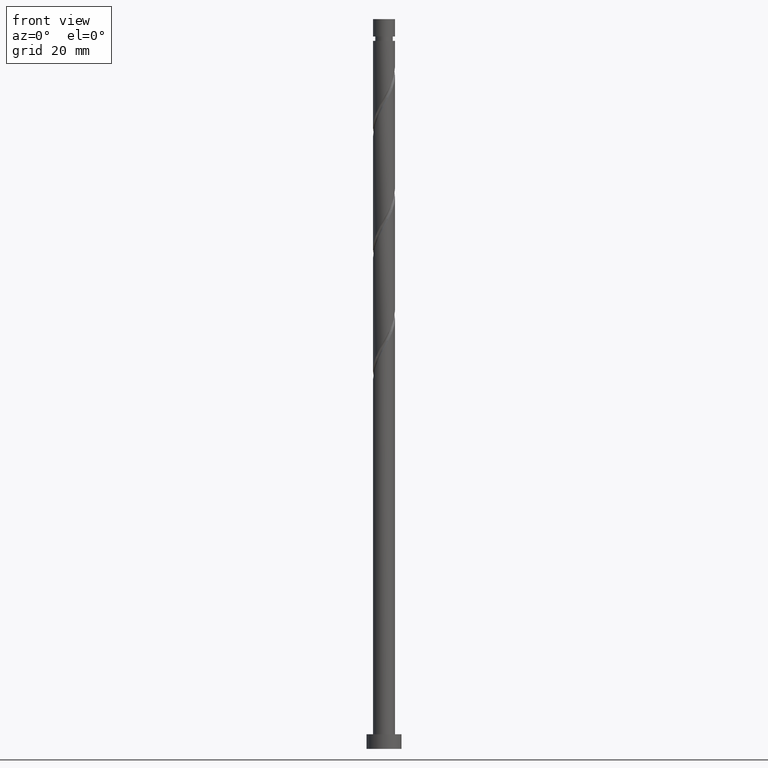
[diagram: clean part render]
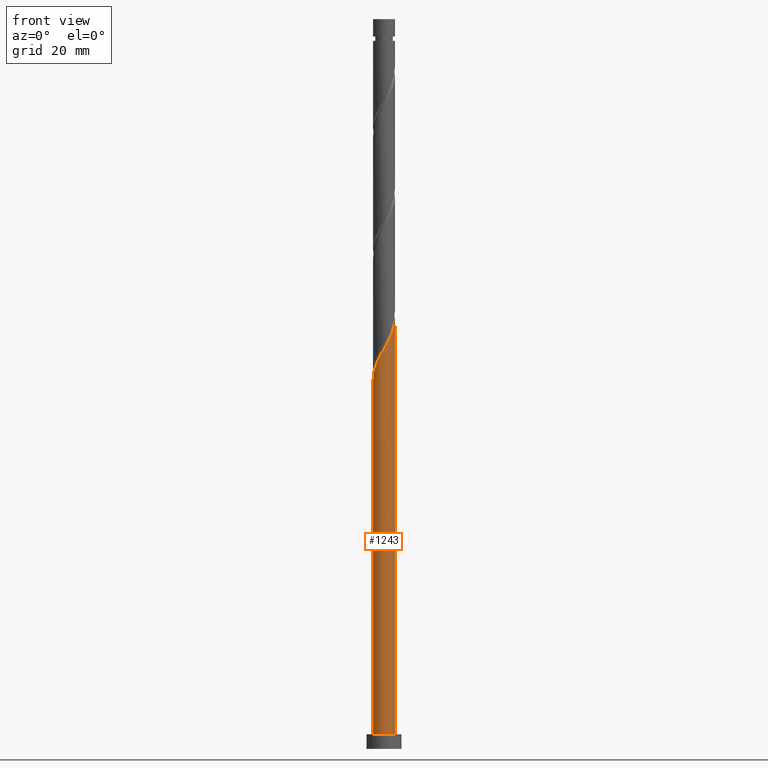
[diagram: same view with one face highlighted and labeled with its STEP entity id]
A machine part, front view. The second image highlights one B-rep face of the part: STEP entity #1243.
In plain terms, the highlighted cylindrical surface (edge-blend (fillet) strip) has radius 3.75 mm, axis along (-0, -0, -1).
Its self-contained STEP definition (entity closure, byte-faithful):
#65 = CARTESIAN_POINT ( 'NONE',  ( -2.600552742313699817, -2.701781899866222858, 131.9624263519389729 ) ) ;
#66 = ORIENTED_EDGE ( 'NONE', *, *, #1007, .F. ) ;
#76 = CARTESIAN_POINT ( 'NONE',  ( -1.484316325817628623, -3.473705899061069413, 134.3662725057850480 ) ) ;
#83 = CARTESIAN_POINT ( 'NONE',  ( -0.1549288833814814470, -3.746798238642456536, 136.7701186596312368 ) ) ;
#100 = DIRECTION ( 'NONE',  ( -0.000000000000000000, -0.000000000000000000, -1.000000000000000000 ) ) ;
#123 = CARTESIAN_POINT ( 'NONE',  ( 3.269464109641848193, -1.892202965863933217, 143.9816571211696896 ) ) ;
#192 = CARTESIAN_POINT ( 'NONE',  ( -3.171564136060952777, -2.000920021103288704, 130.3598622493748849 ) ) ;
#193 = EDGE_LOOP ( 'NONE', ( #66, #1509, #1293, #1297 ) ) ;
#247 = CARTESIAN_POINT ( 'NONE',  ( 3.700805247676857146, -0.6054258986593523684, 146.3855032750158500 ) ) ;
#358 = CARTESIAN_POINT ( 'NONE',  ( -3.738154474233792879, -0.2978273438855548183, 127.1547340442466520 ) ) ;
#369 = CARTESIAN_POINT ( 'NONE',  ( 0.7462405778299671111, -3.675000000000006484, 138.3726827621953532 ) ) ;
#390 = CARTESIAN_POINT ( 'NONE',  ( 0.000000000000000000, 0.000000000000000000, 250.0000000000000000 ) ) ;
#403 = CARTESIAN_POINT ( 'NONE',  ( -3.750000000000000000, 0.000000000000000000, 250.0000000000000000 ) ) ;
#515 = CARTESIAN_POINT ( 'NONE',  ( 3.750000000000000000, 4.592425496802573972E-16, 250.0000000000000000 ) ) ;
#528 = CARTESIAN_POINT ( 'NONE',  ( -3.750000000000006661, 8.076206807974760674E-15, 126.6280942196368073 ) ) ;
#546 =( BOUNDED_CURVE ( )  B_SPLINE_CURVE ( 2, ( #528, #1785, #358, #1346, #1094, #1210, #192, #1357, #65, #1657, #1367, #76, #1077, #940, #83, #657, #369, #951, #1517, #1261, #1550, #1829, #1706, #123, #556, #1279, #247, #961, #1124 ),
 .UNSPECIFIED., .F., .T. ) 
 B_SPLINE_CURVE_WITH_KNOTS ( ( 3, 2, 2, 2, 2, 2, 2, 2, 2, 2, 2, 2, 2, 2, 3 ),
 ( 0.05452716259738325105, 0.05769230769230770939, 0.06730769230769229061, 0.07692307692307687184, 0.08653846153846156408, 0.09615384615384614531, 0.1057692307692307265, 0.1153846153846154188, 0.1250000000000000000, 0.1346153846153845812, 0.1442307692307692735, 0.1538461538461538547, 0.1634615384615384359, 0.1730769230769231282, 0.1795271625973832441 ),
 .UNSPECIFIED. ) 
 CURVE ( )  GEOMETRIC_REPRESENTATION_ITEM ( )  RATIONAL_B_SPLINE_CURVE ( ( 0.9061636035682887336, 0.9069090390690773829, 0.9090909090909340406, 0.9024626128164374705, 0.9090909090909340406, 0.9024626128164374705, 0.9090909090909340406, 0.9024626128164374705, 0.9090909090909340406, 0.9024626128164374705, 0.9090909090909340406, 0.9024626128164374705, 0.9090909090909340406, 0.9024626128164374705, 0.9090909090909340406, 0.9024626128164374705, 0.9090909090909340406, 0.9024626128164374705, 0.9090909090909340406, 0.9024626128164374705, 0.9090909090909340406, 0.9024626128164374705, 0.9090909090909340406, 0.9024626128164374705, 0.9090909090909340406, 0.9024626128164374705, 0.9090909090909340406, 0.9046444828382941283, 0.9061636035682889556 ) ) 
 REPRESENTATION_ITEM ( '' )  );
#556 = CARTESIAN_POINT ( 'NONE',  ( 3.448378672004683398, -1.473493988607778693, 144.7829391724517620 ) ) ;
#557 = VERTEX_POINT ( 'NONE', #842 ) ;
#628 = VERTEX_POINT ( 'NONE', #885 ) ;
#657 = CARTESIAN_POINT ( 'NONE',  ( 0.3000147894881577404, -3.765610010921045969, 137.5714007109132808 ) ) ;
#688 = VERTEX_POINT ( 'NONE', #1176 ) ;
#811 = CARTESIAN_POINT ( 'NONE',  ( 0.000000000000000000, 0.000000000000000000, 5.000000000000000000 ) ) ;
#842 = CARTESIAN_POINT ( 'NONE',  ( 3.750000000000000000, 4.592425496802573972E-16, 5.000000000000000000 ) ) ;
#845 = CIRCLE ( 'NONE', #1589, 3.750000000000000000 ) ;
#869 = AXIS2_PLACEMENT_3D ( 'NONE', #390, #1536, #987 ) ;
#885 = CARTESIAN_POINT ( 'NONE',  ( -3.750000000000006661, 8.076206807974760674E-15, 126.6280942196368073 ) ) ;
#940 = CARTESIAN_POINT ( 'NONE',  ( -0.6098725562511208009, -3.727986466363865770, 135.9688366083491928 ) ) ;
#951 = CARTESIAN_POINT ( 'NONE',  ( 1.192466366171775149, -3.584389989078964778, 139.1739648134774257 ) ) ;
#961 = CARTESIAN_POINT ( 'NONE',  ( 3.750000000000005329, -0.3047116445139239627, 146.9217268156218381 ) ) ;
#987 = DIRECTION ( 'NONE',  ( -1.000000000000000000, 0.000000000000000000, 0.000000000000000000 ) ) ;
#993 = CARTESIAN_POINT ( 'NONE',  ( -3.750000000000000000, 0.000000000000000000, 5.000000000000000000 ) ) ;
#1007 = EDGE_CURVE ( 'NONE', #688, #557, #1802, .T. ) ;
#1053 = EDGE_CURVE ( 'NONE', #628, #688, #546, .T. ) ;
#1077 = CARTESIAN_POINT ( 'NONE',  ( -1.047094441034374546, -3.600846182712469368, 135.1675545570672057 ) ) ;
#1094 = CARTESIAN_POINT ( 'NONE',  ( -3.558255750386915661, -1.183771943762180756, 128.7572981468107685 ) ) ;
#1120 = LINE ( 'NONE', #403, #1352 ) ;
#1124 = CARTESIAN_POINT ( 'NONE',  ( 3.750000000000006217, 1.929316070793970632E-15, 147.4614275529701501 ) ) ;
#1176 = CARTESIAN_POINT ( 'NONE',  ( 3.750000000000006217, 1.929316070793970632E-15, 147.4614275529701501 ) ) ;
#1210 = CARTESIAN_POINT ( 'NONE',  ( -3.414519813292441253, -1.615822413786172973, 129.5585801980928125 ) ) ;
#1221 = VERTEX_POINT ( 'NONE', #993 ) ;
#1241 = FACE_OUTER_BOUND ( 'NONE', #193, .T. ) ;
#1243 = ADVANCED_FACE ( 'NONE', ( #1241 ), #1811, .T. ) ;
#1261 = CARTESIAN_POINT ( 'NONE',  ( 2.015616132092366897, -3.194858249799108929, 140.7765289160415136 ) ) ;
#1279 = CARTESIAN_POINT ( 'NONE',  ( 3.627293234367517716, -1.054785011351626611, 145.5842212237338060 ) ) ;
#1293 = ORIENTED_EDGE ( 'NONE', *, *, #1689, .T. ) ;
#1297 = ORIENTED_EDGE ( 'NONE', *, *, #1711, .T. ) ;
#1346 = CARTESIAN_POINT ( 'NONE',  ( -3.701991687481390514, -0.7517214737381887613, 127.9560160955286960 ) ) ;
#1352 = VECTOR ( 'NONE', #100, 1000.000000000000000 ) ;
#1357 = CARTESIAN_POINT ( 'NONE',  ( -2.928608458829464301, -2.386017628420405767, 131.1611443006569004 ) ) ;
#1367 = CARTESIAN_POINT ( 'NONE',  ( -1.878406675807783310, -3.245626035186555569, 133.5649904545030324 ) ) ;
#1383 = DIRECTION ( 'NONE',  ( 0.000000000000000000, 0.000000000000000000, 1.000000000000000000 ) ) ;
#1509 = ORIENTED_EDGE ( 'NONE', *, *, #1053, .F. ) ;
#1517 = CARTESIAN_POINT ( 'NONE',  ( 1.604041249132071023, -3.389624119439037742, 139.9752468647594412 ) ) ;
#1536 = DIRECTION ( 'NONE',  ( -0.000000000000000000, -0.000000000000000000, -1.000000000000000000 ) ) ;
#1550 = CARTESIAN_POINT ( 'NONE',  ( 2.368620873487329970, -2.907255605838634516, 141.5778109673235576 ) ) ;
#1589 = AXIS2_PLACEMENT_3D ( 'NONE', #811, #1383, #1806 ) ;
#1657 = CARTESIAN_POINT ( 'NONE',  ( -2.272497025797937109, -3.017546171312040837, 132.7637084032209884 ) ) ;
#1689 = EDGE_CURVE ( 'NONE', #628, #1221, #1120, .T. ) ;
#1706 = CARTESIAN_POINT ( 'NONE',  ( 2.995544862262069064, -2.255927963871046771, 143.1803750698877309 ) ) ;
#1707 = VECTOR ( 'NONE', #1777, 1000.000000000000000 ) ;
#1711 = EDGE_CURVE ( 'NONE', #1221, #557, #845, .T. ) ;
#1777 = DIRECTION ( 'NONE',  ( -0.000000000000000000, -0.000000000000000000, -1.000000000000000000 ) ) ;
#1785 = CARTESIAN_POINT ( 'NONE',  ( -3.750000000000006217, -0.1491492387628786664, 126.8922651352697955 ) ) ;
#1802 = LINE ( 'NONE', #515, #1707 ) ;
#1806 = DIRECTION ( 'NONE',  ( 1.000000000000000000, 0.000000000000000000, 0.000000000000000000 ) ) ;
#1811 = CYLINDRICAL_SURFACE ( 'NONE', #869, 3.750000000000000000 ) ;
#1829 = CARTESIAN_POINT ( 'NONE',  ( 2.721625614882290378, -2.619652961878159214, 142.3790930186056300 ) ) ;